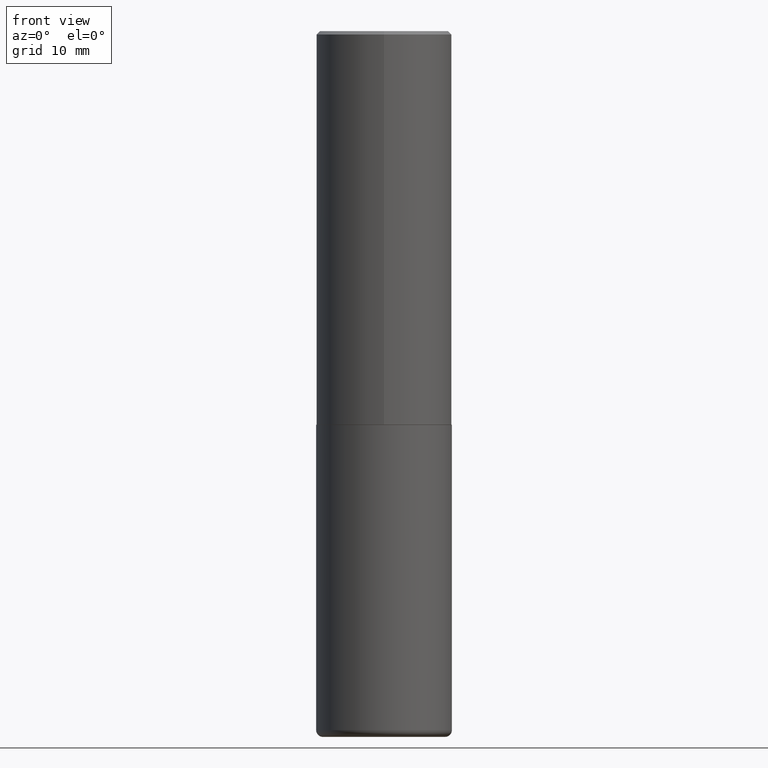
[diagram: clean part render]
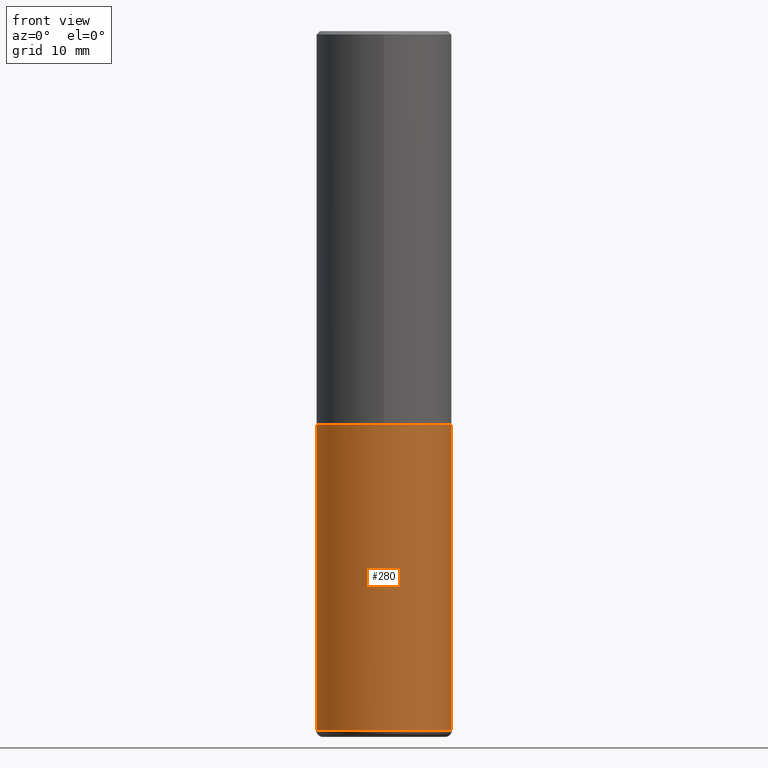
[diagram: same view with one face highlighted and labeled with its STEP entity id]
A machine part, front view. The second image highlights one B-rep face of the part: STEP entity #280.
In plain terms, the highlighted cylindrical surface (partial cylindrical patch) has radius 10 mm, axis along (-0, 0, 1).
Its self-contained STEP definition (entity closure, byte-faithful):
#13 = CARTESIAN_POINT ( 'NONE',  ( 9.916620555961347550E-29, -1.415830597714284070E-14, -4.055100000000000371 ) ) ;
#43 = CARTESIAN_POINT ( 'NONE',  ( -0.3937000000000001054, -1.136089922645532513E-14, -4.055100000000000371 ) ) ;
#69 = ORIENTED_EDGE ( 'NONE', *, *, #209, .T. ) ;
#79 = VECTOR ( 'NONE', #334, 39.37007874015748143 ) ;
#113 = EDGE_CURVE ( 'NONE', #185, #194, #349, .T. ) ;
#135 = VECTOR ( 'NONE', #142, 39.37007874015748143 ) ;
#142 = DIRECTION ( 'NONE',  ( -2.445468806185136877E-29, 3.491481338843145188E-15, 1.000000000000000000 ) ) ;
#145 = LINE ( 'NONE', #179, #79 ) ;
#151 = EDGE_CURVE ( 'NONE', #185, #375, #145, .T. ) ;
#159 = CARTESIAN_POINT ( 'NONE',  ( 0.000000000000000000, 0.000000000000000000, 0.000000000000000000 ) ) ;
#165 = EDGE_CURVE ( 'NONE', #375, #266, #336, .T. ) ;
#171 = DIRECTION ( 'NONE',  ( 1.000000000000000000, -6.982962677686265133E-15, 0.000000000000000000 ) ) ;
#175 = CARTESIAN_POINT ( 'NONE',  ( 0.3937000000000001054, -1.690749838334792550E-14, -4.055100000000000371 ) ) ;
#179 = CARTESIAN_POINT ( 'NONE',  ( -0.3937000000000000499, 2.797406750687514786E-15, -1.936584745033356735E-29 ) ) ;
#181 = AXIS2_PLACEMENT_3D ( 'NONE', #212, #269, #171 ) ;
#185 = VERTEX_POINT ( 'NONE', #43 ) ;
#188 = ORIENTED_EDGE ( 'NONE', *, *, #113, .T. ) ;
#194 = VERTEX_POINT ( 'NONE', #175 ) ;
#207 = LINE ( 'NONE', #364, #135 ) ;
#209 = EDGE_CURVE ( 'NONE', #194, #266, #207, .T. ) ;
#212 = CARTESIAN_POINT ( 'NONE',  ( 5.584228018923760468E-29, -7.972797637248324710E-15, -2.283500000000000529 ) ) ;
#227 = ORIENTED_EDGE ( 'NONE', *, *, #151, .F. ) ;
#240 = DIRECTION ( 'NONE',  ( 1.000000000000000000, -6.982962677686267499E-15, 0.000000000000000000 ) ) ;
#248 = AXIS2_PLACEMENT_3D ( 'NONE', #13, #369, #240 ) ;
#259 = EDGE_LOOP ( 'NONE', ( #227, #188, #69, #325 ) ) ;
#266 = VERTEX_POINT ( 'NONE', #285 ) ;
#269 = DIRECTION ( 'NONE',  ( -2.445468806185136597E-29, 3.491481338843145583E-15, 1.000000000000000000 ) ) ;
#276 = AXIS2_PLACEMENT_3D ( 'NONE', #159, #311, #310 ) ;
#280 = ADVANCED_FACE ( 'NONE', ( #340 ), #342, .T. ) ;
#285 = CARTESIAN_POINT ( 'NONE',  ( 0.3937000000000000499, -1.072199004345340635E-14, -2.283500000000000529 ) ) ;
#310 = DIRECTION ( 'NONE',  ( 1.000000000000000000, -6.982962677686265922E-15, 4.876176775795935793E-29 ) ) ;
#311 = DIRECTION ( 'NONE',  ( -2.445468806185136597E-29, 3.491481338843145583E-15, 1.000000000000000000 ) ) ;
#325 = ORIENTED_EDGE ( 'NONE', *, *, #165, .F. ) ;
#334 = DIRECTION ( 'NONE',  ( -2.445468806185136877E-29, 3.491481338843145188E-15, 1.000000000000000000 ) ) ;
#336 = CIRCLE ( 'NONE', #181, 0.3937000000000000499 ) ;
#340 = FACE_OUTER_BOUND ( 'NONE', #259, .T. ) ;
#342 = CYLINDRICAL_SURFACE ( 'NONE', #276, 0.3937000000000000499 ) ;
#345 = CARTESIAN_POINT ( 'NONE',  ( -0.3937000000000000499, -8.268145056508067919E-15, -2.283500000000000529 ) ) ;
#349 = CIRCLE ( 'NONE', #248, 0.3937000000000000499 ) ;
#364 = CARTESIAN_POINT ( 'NONE',  ( 0.3937000000000000499, -2.749192406205083217E-15, 1.919750796630860172E-29 ) ) ;
#369 = DIRECTION ( 'NONE',  ( -2.445468806185136597E-29, 3.491481338843145583E-15, 1.000000000000000000 ) ) ;
#375 = VERTEX_POINT ( 'NONE', #345 ) ;